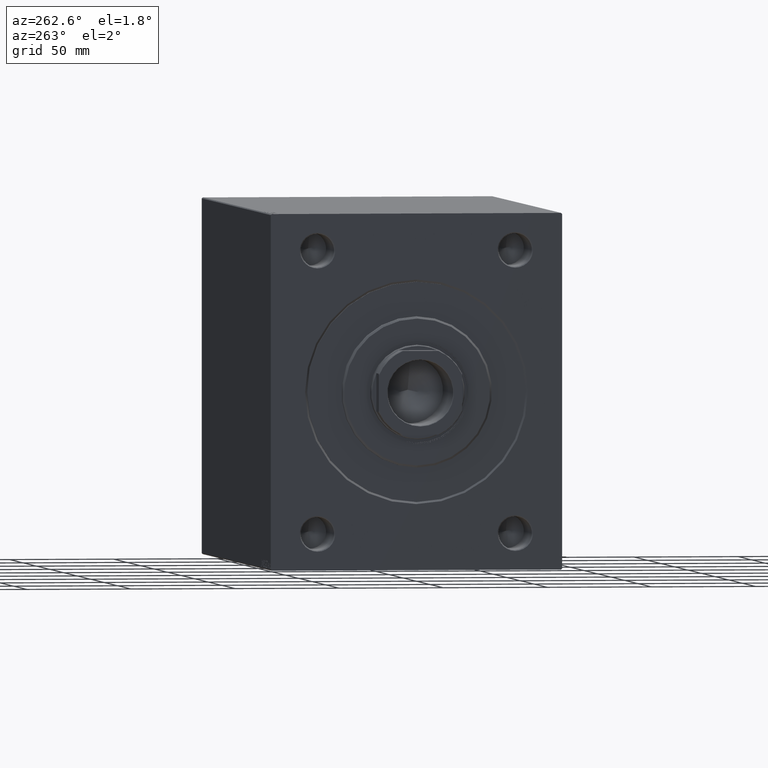
[diagram: clean part render]
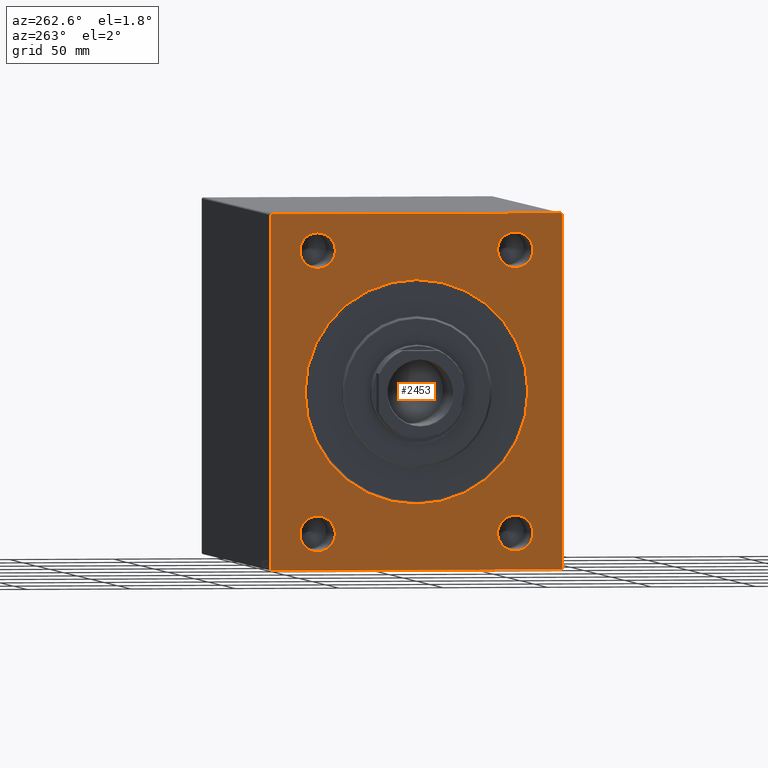
[diagram: same view with one face highlighted and labeled with its STEP entity id]
A machine part, auxiliary view. The second image highlights one B-rep face of the part: STEP entity #2453.
In plain terms, the highlighted planar face has unit normal (1, 0, 0).
Its self-contained STEP definition (entity closure, byte-faithful):
#153 = ORIENTED_EDGE ( 'NONE', *, *, #12096, .T. ) ;
#653 = CIRCLE ( 'NONE', #35816, 8.500000000000007105 ) ;
#722 = LINE ( 'NONE', #41638, #14352 ) ;
#1633 = FACE_BOUND ( 'NONE', #41495, .T. ) ;
#1888 = EDGE_LOOP ( 'NONE', ( #8403, #40216, #35628, #153, #33647, #20352, #19503, #9754 ) ) ;
#1918 = AXIS2_PLACEMENT_3D ( 'NONE', #27099, #22640, #43544 ) ;
#1969 = CARTESIAN_POINT ( 'NONE',  ( 0.000000000000000000, -70.00000000000000000, 84.49999999999998579 ) ) ;
#1976 = DIRECTION ( 'NONE',  ( 0.000000000000000000, 0.000000000000000000, -1.000000000000000000 ) ) ;
#2136 = AXIS2_PLACEMENT_3D ( 'NONE', #18491, #15562, #38730 ) ;
#2229 = EDGE_CURVE ( 'NONE', #27110, #41702, #8312, .T. ) ;
#2303 = PLANE ( 'NONE',  #14742 ) ;
#2319 = DIRECTION ( 'NONE',  ( 0.000000000000000000, 0.000000000000000000, -1.000000000000000000 ) ) ;
#2453 = ADVANCED_FACE ( 'NONE', ( #4790, #35783, #19368, #32626, #1633, #12406 ), #2303, .F. ) ;
#2523 = CARTESIAN_POINT ( 'NONE',  ( 0.000000000000000000, 69.50000000000005684, -85.00000000000000000 ) ) ;
#3060 = CARTESIAN_POINT ( 'NONE',  ( 0.000000000000000000, 69.49999999999997158, 85.00000000000001421 ) ) ;
#3273 = LINE ( 'NONE', #3060, #35101 ) ;
#3393 = VECTOR ( 'NONE', #9656, 1000.000000000000000 ) ;
#3537 = CARTESIAN_POINT ( 'NONE',  ( 0.000000000000000000, 69.49999999999997158, 85.00000000000001421 ) ) ;
#3578 = CIRCLE ( 'NONE', #2136, 8.500000000000007105 ) ;
#3605 = VERTEX_POINT ( 'NONE', #11415 ) ;
#3641 = DIRECTION ( 'NONE',  ( 1.000000000000000000, 0.000000000000000000, 0.000000000000000000 ) ) ;
#3910 = CARTESIAN_POINT ( 'NONE',  ( 0.000000000000000000, -47.50000000000000000, 67.49999999999998579 ) ) ;
#4143 = VERTEX_POINT ( 'NONE', #27512 ) ;
#4513 = VERTEX_POINT ( 'NONE', #35531 ) ;
#4790 = FACE_BOUND ( 'NONE', #36359, .T. ) ;
#5037 = CARTESIAN_POINT ( 'NONE',  ( 0.000000000000000000, -69.49999999999995737, -85.00000000000000000 ) ) ;
#5384 = EDGE_CURVE ( 'NONE', #25517, #4513, #11946, .T. ) ;
#5802 = DIRECTION ( 'NONE',  ( 1.000000000000000000, 0.000000000000000000, 0.000000000000000000 ) ) ;
#6649 = DIRECTION ( 'NONE',  ( -0.000000000000000000, 0.7071067811865378028, -0.7071067811865573427 ) ) ;
#6937 = EDGE_CURVE ( 'NONE', #16480, #23864, #40451, .T. ) ;
#7193 = EDGE_CURVE ( 'NONE', #41702, #27110, #9836, .T. ) ;
#7444 = EDGE_CURVE ( 'NONE', #41593, #19674, #9292, .T. ) ;
#7847 = AXIS2_PLACEMENT_3D ( 'NONE', #28387, #21660, #42332 ) ;
#7879 = CIRCLE ( 'NONE', #24396, 8.500000000000007105 ) ;
#8312 = CIRCLE ( 'NONE', #28380, 8.500000000000007105 ) ;
#8403 = ORIENTED_EDGE ( 'NONE', *, *, #6937, .F. ) ;
#8796 = LINE ( 'NONE', #29692, #14545 ) ;
#9292 = LINE ( 'NONE', #23012, #19164 ) ;
#9656 = DIRECTION ( 'NONE',  ( 0.000000000000000000, 0.000000000000000000, -1.000000000000000000 ) ) ;
#9750 = CARTESIAN_POINT ( 'NONE',  ( 0.000000000000000000, -47.50000000000000000, 76.00000000000000000 ) ) ;
#9754 = ORIENTED_EDGE ( 'NONE', *, *, #35128, .T. ) ;
#9836 = CIRCLE ( 'NONE', #18462, 8.500000000000007105 ) ;
#10054 = ORIENTED_EDGE ( 'NONE', *, *, #32555, .T. ) ;
#10581 = DIRECTION ( 'NONE',  ( 1.000000000000000000, 0.000000000000000000, 0.000000000000000000 ) ) ;
#10806 = LINE ( 'NONE', #14624, #32408 ) ;
#10882 = CIRCLE ( 'NONE', #19528, 8.500000000000007105 ) ;
#11323 = ORIENTED_EDGE ( 'NONE', *, *, #2229, .T. ) ;
#11387 = DIRECTION ( 'NONE',  ( 1.000000000000000000, 0.000000000000000000, 0.000000000000000000 ) ) ;
#11415 = CARTESIAN_POINT ( 'NONE',  ( 0.000000000000000000, 47.50000000000000000, 58.99999999999998579 ) ) ;
#11511 = ORIENTED_EDGE ( 'NONE', *, *, #33302, .T. ) ;
#11946 = CIRCLE ( 'NONE', #1918, 53.50000000000002842 ) ;
#12096 = EDGE_CURVE ( 'NONE', #25527, #19674, #3273, .T. ) ;
#12131 = CARTESIAN_POINT ( 'NONE',  ( 0.000000000000000000, -70.00000000000000000, 84.99999999999998579 ) ) ;
#12406 = FACE_OUTER_BOUND ( 'NONE', #1888, .T. ) ;
#12721 = DIRECTION ( 'NONE',  ( -0.000000000000000000, 0.7071067811865672237, 0.7071067811865279218 ) ) ;
#13535 = DIRECTION ( 'NONE',  ( 0.000000000000000000, -8.163404592832031500E-17, 1.000000000000000000 ) ) ;
#13984 = DIRECTION ( 'NONE',  ( 0.000000000000000000, -0.7071067811865376918, -0.7071067811865574537 ) ) ;
#14249 = EDGE_LOOP ( 'NONE', ( #14688, #43083 ) ) ;
#14352 = VECTOR ( 'NONE', #13984, 999.9999999999998863 ) ;
#14411 = AXIS2_PLACEMENT_3D ( 'NONE', #38821, #11387, #25112 ) ;
#14545 = VECTOR ( 'NONE', #35992, 1000.000000000000000 ) ;
#14624 = CARTESIAN_POINT ( 'NONE',  ( 0.000000000000000000, -70.00000000000000000, -85.00000000000000000 ) ) ;
#14688 = ORIENTED_EDGE ( 'NONE', *, *, #17205, .T. ) ;
#14742 = AXIS2_PLACEMENT_3D ( 'NONE', #21869, #29711, #36244 ) ;
#14848 = EDGE_CURVE ( 'NONE', #41593, #42402, #722, .T. ) ;
#15292 = CARTESIAN_POINT ( 'NONE',  ( 0.000000000000000000, 70.00000000000001421, -84.50000000000002842 ) ) ;
#15562 = DIRECTION ( 'NONE',  ( 1.000000000000000000, 0.000000000000000000, 0.000000000000000000 ) ) ;
#15563 = LINE ( 'NONE', #21883, #40891 ) ;
#16480 = VERTEX_POINT ( 'NONE', #1969 ) ;
#17144 = ORIENTED_EDGE ( 'NONE', *, *, #18163, .T. ) ;
#17205 = EDGE_CURVE ( 'NONE', #30490, #3605, #36564, .T. ) ;
#17223 = VERTEX_POINT ( 'NONE', #35793 ) ;
#17365 = CARTESIAN_POINT ( 'NONE',  ( 0.000000000000000000, 47.50000000000000000, -76.00000000000002842 ) ) ;
#18163 = EDGE_CURVE ( 'NONE', #18456, #17223, #3578, .T. ) ;
#18415 = EDGE_CURVE ( 'NONE', #27668, #4143, #7879, .T. ) ;
#18456 = VERTEX_POINT ( 'NONE', #36470 ) ;
#18462 = AXIS2_PLACEMENT_3D ( 'NONE', #36583, #5802, #1976 ) ;
#18491 = CARTESIAN_POINT ( 'NONE',  ( 0.000000000000000000, -47.50000000000000000, -67.50000000000001421 ) ) ;
#18788 = ORIENTED_EDGE ( 'NONE', *, *, #40340, .T. ) ;
#19164 = VECTOR ( 'NONE', #13535, 1000.000000000000000 ) ;
#19174 = EDGE_LOOP ( 'NONE', ( #17144, #11511 ) ) ;
#19368 = FACE_BOUND ( 'NONE', #40442, .T. ) ;
#19503 = ORIENTED_EDGE ( 'NONE', *, *, #40721, .F. ) ;
#19528 = AXIS2_PLACEMENT_3D ( 'NONE', #3910, #31530, #38052 ) ;
#19611 = DIRECTION ( 'NONE',  ( 1.000000000000000000, 0.000000000000000000, 0.000000000000000000 ) ) ;
#19674 = VERTEX_POINT ( 'NONE', #25210 ) ;
#20352 = ORIENTED_EDGE ( 'NONE', *, *, #14848, .T. ) ;
#21053 = EDGE_CURVE ( 'NONE', #3605, #30490, #27307, .T. ) ;
#21154 = DIRECTION ( 'NONE',  ( 0.000000000000000000, 1.000000000000000000, 0.000000000000000000 ) ) ;
#21660 = DIRECTION ( 'NONE',  ( 1.000000000000000000, 0.000000000000000000, 0.000000000000000000 ) ) ;
#21869 = CARTESIAN_POINT ( 'NONE',  ( 0.000000000000000000, 0.000000000000000000, 0.000000000000000000 ) ) ;
#21883 = CARTESIAN_POINT ( 'NONE',  ( 0.000000000000000000, -69.49999999999995737, -85.00000000000000000 ) ) ;
#22640 = DIRECTION ( 'NONE',  ( 1.000000000000000000, 0.000000000000000000, 0.000000000000000000 ) ) ;
#23012 = CARTESIAN_POINT ( 'NONE',  ( 0.000000000000000000, 70.00000000000001421, -85.00000000000000000 ) ) ;
#23864 = VERTEX_POINT ( 'NONE', #24138 ) ;
#24138 = CARTESIAN_POINT ( 'NONE',  ( 0.000000000000000000, -70.00000000000000000, -84.49999999999994316 ) ) ;
#24300 = CARTESIAN_POINT ( 'NONE',  ( 0.000000000000000000, 0.000000000000000000, 0.000000000000000000 ) ) ;
#24303 = AXIS2_PLACEMENT_3D ( 'NONE', #24300, #10581, #35062 ) ;
#24396 = AXIS2_PLACEMENT_3D ( 'NONE', #39393, #19611, #2319 ) ;
#25112 = DIRECTION ( 'NONE',  ( 0.000000000000000000, 0.000000000000000000, -1.000000000000000000 ) ) ;
#25210 = CARTESIAN_POINT ( 'NONE',  ( 0.000000000000000000, 70.00000000000000000, 84.49999999999997158 ) ) ;
#25234 = DIRECTION ( 'NONE',  ( 0.000000000000000000, 0.000000000000000000, -1.000000000000000000 ) ) ;
#25517 = VERTEX_POINT ( 'NONE', #41294 ) ;
#25527 = VERTEX_POINT ( 'NONE', #3537 ) ;
#25993 = LINE ( 'NONE', #33173, #38279 ) ;
#26032 = EDGE_CURVE ( 'NONE', #25527, #43405, #8796, .T. ) ;
#26224 = CARTESIAN_POINT ( 'NONE',  ( 0.000000000000000000, 47.50000000000000000, 76.00000000000000000 ) ) ;
#27099 = CARTESIAN_POINT ( 'NONE',  ( 0.000000000000000000, 0.000000000000000000, 0.000000000000000000 ) ) ;
#27110 = VERTEX_POINT ( 'NONE', #17365 ) ;
#27307 = CIRCLE ( 'NONE', #14411, 8.500000000000007105 ) ;
#27512 = CARTESIAN_POINT ( 'NONE',  ( 0.000000000000000000, -47.50000000000000000, 58.99999999999998579 ) ) ;
#27668 = VERTEX_POINT ( 'NONE', #9750 ) ;
#28342 = DIRECTION ( 'NONE',  ( 0.000000000000000000, 0.000000000000000000, -1.000000000000000000 ) ) ;
#28380 = AXIS2_PLACEMENT_3D ( 'NONE', #34887, #42099, #25234 ) ;
#28387 = CARTESIAN_POINT ( 'NONE',  ( 0.000000000000000000, 47.50000000000000000, 67.49999999999998579 ) ) ;
#29459 = EDGE_CURVE ( 'NONE', #16480, #43405, #25993, .T. ) ;
#29692 = CARTESIAN_POINT ( 'NONE',  ( 0.000000000000000000, 70.00000000000000000, 85.00000000000001421 ) ) ;
#29711 = DIRECTION ( 'NONE',  ( 1.000000000000000000, 0.000000000000000000, 0.000000000000000000 ) ) ;
#29894 = CARTESIAN_POINT ( 'NONE',  ( 0.000000000000000000, 47.50000000000000000, -59.00000000000001421 ) ) ;
#30490 = VERTEX_POINT ( 'NONE', #26224 ) ;
#31530 = DIRECTION ( 'NONE',  ( 1.000000000000000000, 0.000000000000000000, 0.000000000000000000 ) ) ;
#31710 = CARTESIAN_POINT ( 'NONE',  ( 0.000000000000000000, -47.50000000000000000, -67.50000000000001421 ) ) ;
#32356 = ORIENTED_EDGE ( 'NONE', *, *, #18415, .T. ) ;
#32408 = VECTOR ( 'NONE', #21154, 1000.000000000000000 ) ;
#32555 = EDGE_CURVE ( 'NONE', #4513, #25517, #37935, .T. ) ;
#32626 = FACE_BOUND ( 'NONE', #14249, .T. ) ;
#33173 = CARTESIAN_POINT ( 'NONE',  ( 0.000000000000000000, -70.00000000000000000, 84.49999999999998579 ) ) ;
#33302 = EDGE_CURVE ( 'NONE', #17223, #18456, #653, .T. ) ;
#33647 = ORIENTED_EDGE ( 'NONE', *, *, #7444, .F. ) ;
#34316 = CARTESIAN_POINT ( 'NONE',  ( 0.000000000000000000, -69.49999999999997158, 84.99999999999998579 ) ) ;
#34887 = CARTESIAN_POINT ( 'NONE',  ( 0.000000000000000000, 47.50000000000000000, -67.50000000000001421 ) ) ;
#35062 = DIRECTION ( 'NONE',  ( 0.000000000000000000, 0.000000000000000000, -1.000000000000000000 ) ) ;
#35101 = VECTOR ( 'NONE', #6649, 1000.000000000000000 ) ;
#35128 = EDGE_CURVE ( 'NONE', #36056, #23864, #15563, .T. ) ;
#35531 = CARTESIAN_POINT ( 'NONE',  ( 0.000000000000000000, 6.551860375438343048E-15, -53.50000000000002842 ) ) ;
#35579 = DIRECTION ( 'NONE',  ( -0.000000000000000000, -0.7071067811865376918, 0.7071067811865573427 ) ) ;
#35628 = ORIENTED_EDGE ( 'NONE', *, *, #26032, .F. ) ;
#35783 = FACE_BOUND ( 'NONE', #19174, .T. ) ;
#35793 = CARTESIAN_POINT ( 'NONE',  ( 0.000000000000000000, -47.50000000000000000, -76.00000000000002842 ) ) ;
#35816 = AXIS2_PLACEMENT_3D ( 'NONE', #31710, #3641, #28342 ) ;
#35992 = DIRECTION ( 'NONE',  ( 0.000000000000000000, -1.000000000000000000, -1.982541115402065110E-16 ) ) ;
#36056 = VERTEX_POINT ( 'NONE', #5037 ) ;
#36244 = DIRECTION ( 'NONE',  ( 0.000000000000000000, 0.000000000000000000, -1.000000000000000000 ) ) ;
#36359 = EDGE_LOOP ( 'NONE', ( #36760, #10054 ) ) ;
#36470 = CARTESIAN_POINT ( 'NONE',  ( 0.000000000000000000, -47.50000000000000000, -59.00000000000001421 ) ) ;
#36564 = CIRCLE ( 'NONE', #7847, 8.500000000000007105 ) ;
#36583 = CARTESIAN_POINT ( 'NONE',  ( 0.000000000000000000, 47.50000000000000000, -67.50000000000001421 ) ) ;
#36760 = ORIENTED_EDGE ( 'NONE', *, *, #5384, .T. ) ;
#37935 = CIRCLE ( 'NONE', #24303, 53.50000000000002842 ) ;
#38052 = DIRECTION ( 'NONE',  ( 0.000000000000000000, 0.000000000000000000, -1.000000000000000000 ) ) ;
#38279 = VECTOR ( 'NONE', #12721, 1000.000000000000000 ) ;
#38730 = DIRECTION ( 'NONE',  ( 0.000000000000000000, 0.000000000000000000, -1.000000000000000000 ) ) ;
#38821 = CARTESIAN_POINT ( 'NONE',  ( 0.000000000000000000, 47.50000000000000000, 67.49999999999998579 ) ) ;
#39393 = CARTESIAN_POINT ( 'NONE',  ( 0.000000000000000000, -47.50000000000000000, 67.49999999999998579 ) ) ;
#39947 = ORIENTED_EDGE ( 'NONE', *, *, #7193, .T. ) ;
#40216 = ORIENTED_EDGE ( 'NONE', *, *, #29459, .T. ) ;
#40340 = EDGE_CURVE ( 'NONE', #4143, #27668, #10882, .T. ) ;
#40442 = EDGE_LOOP ( 'NONE', ( #32356, #18788 ) ) ;
#40451 = LINE ( 'NONE', #12131, #3393 ) ;
#40721 = EDGE_CURVE ( 'NONE', #36056, #42402, #10806, .T. ) ;
#40891 = VECTOR ( 'NONE', #35579, 1000.000000000000114 ) ;
#41294 = CARTESIAN_POINT ( 'NONE',  ( 0.000000000000000000, 0.000000000000000000, 53.50000000000002842 ) ) ;
#41495 = EDGE_LOOP ( 'NONE', ( #39947, #11323 ) ) ;
#41593 = VERTEX_POINT ( 'NONE', #15292 ) ;
#41638 = CARTESIAN_POINT ( 'NONE',  ( 0.000000000000000000, 70.00000000000001421, -84.50000000000002842 ) ) ;
#41702 = VERTEX_POINT ( 'NONE', #29894 ) ;
#42099 = DIRECTION ( 'NONE',  ( 1.000000000000000000, 0.000000000000000000, 0.000000000000000000 ) ) ;
#42332 = DIRECTION ( 'NONE',  ( 0.000000000000000000, 0.000000000000000000, -1.000000000000000000 ) ) ;
#42402 = VERTEX_POINT ( 'NONE', #2523 ) ;
#43083 = ORIENTED_EDGE ( 'NONE', *, *, #21053, .T. ) ;
#43405 = VERTEX_POINT ( 'NONE', #34316 ) ;
#43544 = DIRECTION ( 'NONE',  ( 0.000000000000000000, 0.000000000000000000, -1.000000000000000000 ) ) ;